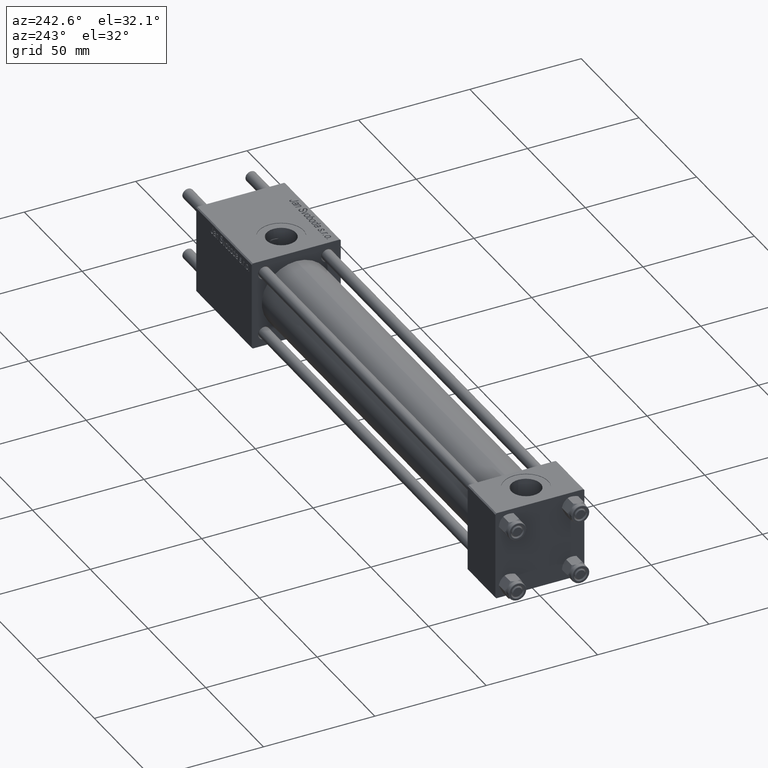
[diagram: clean part render]
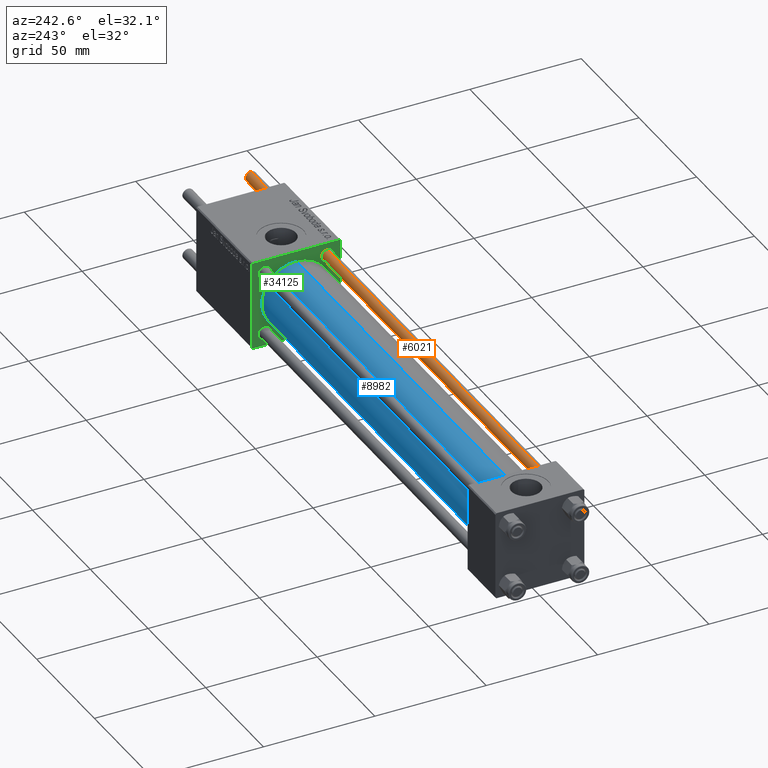
[diagram: same view with three faces highlighted in distinct colors, each labeled with its STEP entity id]
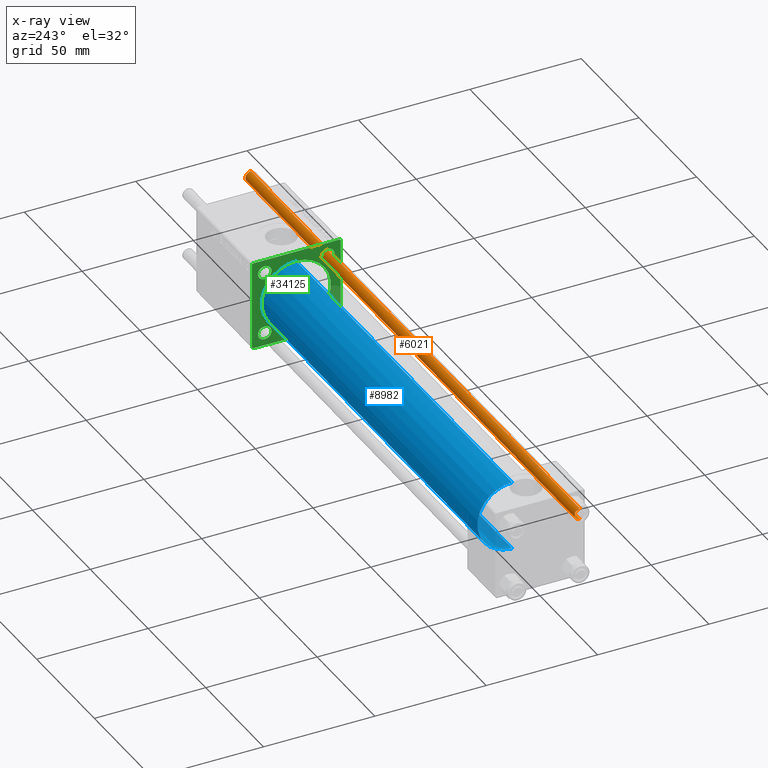
[diagram: x-ray of the same camera — body ghosted, the three highlighted faces saturated]
A machine part, auxiliary view with three faces highlighted in distinct colors.
The next image is the same camera in x-ray (body ghosted, the three faces saturated) — at least one of them is partly hidden behind the body in this view.
Their STEP definitions:

[orange] entity #6021 — the highlighted cylindrical surface (edge-blend (fillet) strip) has radius 2.5 mm, axis along (-1, 0, -0).
#3072 = VERTEX_POINT ( 'NONE', #22778 ) ;
#4381 = ORIENTED_EDGE ( 'NONE', *, *, #10890, .T. ) ;
#5336 = EDGE_LOOP ( 'NONE', ( #15496, #4381, #50190, #16356 ) ) ;
#6021 = ADVANCED_FACE ( 'NONE', ( #41979 ), #37671, .T. ) ;
#7095 = DIRECTION ( 'NONE',  ( 1.000000000000000000, 0.000000000000000000, 0.000000000000000000 ) ) ;
#7249 = AXIS2_PLACEMENT_3D ( 'NONE', #42380, #37202, #7095 ) ;
#9975 = VERTEX_POINT ( 'NONE', #27459 ) ;
#10890 = EDGE_CURVE ( 'NONE', #38760, #28191, #41105, .T. ) ;
#10991 = CARTESIAN_POINT ( 'NONE',  ( 2.500000000000000000, 3.061616997868383141E-16, 285.4999999999999432 ) ) ;
#12110 = CARTESIAN_POINT ( 'NONE',  ( 2.500000000000000000, 3.061616997868383141E-16, 286.0000000000000000 ) ) ;
#13340 = EDGE_CURVE ( 'NONE', #38760, #9975, #25854, .T. ) ;
#15496 = ORIENTED_EDGE ( 'NONE', *, *, #13340, .F. ) ;
#16356 = ORIENTED_EDGE ( 'NONE', *, *, #55794, .T. ) ;
#16907 = CARTESIAN_POINT ( 'NONE',  ( -2.500000000000000000, 0.000000000000000000, 286.0000000000000000 ) ) ;
#17466 = DIRECTION ( 'NONE',  ( -0.000000000000000000, -0.000000000000000000, -1.000000000000000000 ) ) ;
#20191 = CARTESIAN_POINT ( 'NONE',  ( 0.000000000000000000, 0.000000000000000000, 0.4999999999999449329 ) ) ;
#21545 = DIRECTION ( 'NONE',  ( -0.000000000000000000, -0.000000000000000000, -1.000000000000000000 ) ) ;
#21991 = VECTOR ( 'NONE', #21545, 1000.000000000000000 ) ;
#22778 = CARTESIAN_POINT ( 'NONE',  ( -2.500000000000000000, 0.000000000000000000, 0.4999999999999449329 ) ) ;
#25779 = LINE ( 'NONE', #16907, #44463 ) ;
#25854 = LINE ( 'NONE', #12110, #21991 ) ;
#27459 = CARTESIAN_POINT ( 'NONE',  ( 2.500000000000000000, 3.061616997868383141E-16, 0.4999999999999449329 ) ) ;
#28191 = VERTEX_POINT ( 'NONE', #51040 ) ;
#29631 = DIRECTION ( 'NONE',  ( -0.000000000000000000, -0.000000000000000000, -1.000000000000000000 ) ) ;
#37202 = DIRECTION ( 'NONE',  ( 0.000000000000000000, 0.000000000000000000, -1.000000000000000000 ) ) ;
#37671 = CYLINDRICAL_SURFACE ( 'NONE', #55639, 2.500000000000000000 ) ;
#37677 = DIRECTION ( 'NONE',  ( -0.000000000000000000, -0.000000000000000000, 1.000000000000000000 ) ) ;
#38760 = VERTEX_POINT ( 'NONE', #10991 ) ;
#40085 = AXIS2_PLACEMENT_3D ( 'NONE', #20191, #37677, #42560 ) ;
#41105 = CIRCLE ( 'NONE', #7249, 2.500000000000000000 ) ;
#41979 = FACE_OUTER_BOUND ( 'NONE', #5336, .T. ) ;
#42380 = CARTESIAN_POINT ( 'NONE',  ( 0.000000000000000000, 0.000000000000000000, 285.4999999999999432 ) ) ;
#42560 = DIRECTION ( 'NONE',  ( 1.000000000000000000, 0.000000000000000000, 0.000000000000000000 ) ) ;
#44463 = VECTOR ( 'NONE', #17466, 1000.000000000000000 ) ;
#49405 = EDGE_CURVE ( 'NONE', #28191, #3072, #25779, .T. ) ;
#50190 = ORIENTED_EDGE ( 'NONE', *, *, #49405, .T. ) ;
#51040 = CARTESIAN_POINT ( 'NONE',  ( -2.500000000000000000, 0.000000000000000000, 285.4999999999999432 ) ) ;
#51439 = CARTESIAN_POINT ( 'NONE',  ( 0.000000000000000000, 0.000000000000000000, 286.0000000000000000 ) ) ;
#52882 = CIRCLE ( 'NONE', #40085, 2.500000000000000000 ) ;
#53820 = DIRECTION ( 'NONE',  ( -1.000000000000000000, 0.000000000000000000, 0.000000000000000000 ) ) ;
#55639 = AXIS2_PLACEMENT_3D ( 'NONE', #51439, #29631, #53820 ) ;
#55794 = EDGE_CURVE ( 'NONE', #3072, #9975, #52882, .T. ) ;

[blue] entity #8982 — the highlighted cylindrical surface (partial cylindrical patch) has radius 15.5 mm, axis along (-1, -0, -0).
#2946 = VECTOR ( 'NONE', #49266, 1000.000000000000000 ) ;
#3330 = ORIENTED_EDGE ( 'NONE', *, *, #33456, .T. ) ;
#5715 = EDGE_CURVE ( 'NONE', #48052, #22414, #36388, .T. ) ;
#6720 = CARTESIAN_POINT ( 'NONE',  ( 211.0000000000000000, -2.602085213965210642E-15, 15.50000000000000000 ) ) ;
#8982 = ADVANCED_FACE ( 'NONE', ( #45680 ), #24166, .T. ) ;
#10419 = DIRECTION ( 'NONE',  ( -1.000000000000000000, -0.000000000000000000, -0.000000000000000000 ) ) ;
#11209 = DIRECTION ( 'NONE',  ( 0.000000000000000000, 0.000000000000000000, 1.000000000000000000 ) ) ;
#14284 = LINE ( 'NONE', #31759, #2946 ) ;
#15570 = CARTESIAN_POINT ( 'NONE',  ( 211.0000000000000000, -2.602085213965210642E-15, 0.000000000000000000 ) ) ;
#16452 = CARTESIAN_POINT ( 'NONE',  ( 23.99999999999999289, -7.038826752868131828E-16, -15.50000000000000000 ) ) ;
#16490 = ORIENTED_EDGE ( 'NONE', *, *, #17207, .T. ) ;
#17207 = EDGE_CURVE ( 'NONE', #39009, #44086, #51214, .T. ) ;
#20161 = VECTOR ( 'NONE', #24215, 1000.000000000000000 ) ;
#22414 = VERTEX_POINT ( 'NONE', #34363 ) ;
#24054 = DIRECTION ( 'NONE',  ( 0.000000000000000000, 0.000000000000000000, -1.000000000000000000 ) ) ;
#24166 = CYLINDRICAL_SURFACE ( 'NONE', #34674, 15.50000000000000000 ) ;
#24215 = DIRECTION ( 'NONE',  ( -1.000000000000000000, -0.000000000000000000, -0.000000000000000000 ) ) ;
#26813 = EDGE_CURVE ( 'NONE', #22414, #44086, #46009, .T. ) ;
#30472 = CARTESIAN_POINT ( 'NONE',  ( 23.99999999999999289, -2.602085213965210642E-15, 15.50000000000000000 ) ) ;
#31759 = CARTESIAN_POINT ( 'NONE',  ( 211.0000000000000000, -7.038826752868131828E-16, -15.50000000000000000 ) ) ;
#32735 = AXIS2_PLACEMENT_3D ( 'NONE', #36950, #45842, #24054 ) ;
#33051 = DIRECTION ( 'NONE',  ( 0.000000000000000000, 0.000000000000000000, 1.000000000000000000 ) ) ;
#33456 = EDGE_CURVE ( 'NONE', #48052, #39009, #14284, .T. ) ;
#33950 = CARTESIAN_POINT ( 'NONE',  ( 211.0000000000000000, -7.038826752868131828E-16, -15.50000000000000000 ) ) ;
#34363 = CARTESIAN_POINT ( 'NONE',  ( 211.0000000000000000, -2.602085213965210642E-15, 15.50000000000000000 ) ) ;
#34674 = AXIS2_PLACEMENT_3D ( 'NONE', #15570, #10419, #33051 ) ;
#35816 = EDGE_LOOP ( 'NONE', ( #41666, #3330, #16490, #37172 ) ) ;
#36388 = CIRCLE ( 'NONE', #32735, 15.50000000000000000 ) ;
#36950 = CARTESIAN_POINT ( 'NONE',  ( 211.0000000000000000, -2.602085213965210642E-15, 0.000000000000000000 ) ) ;
#37172 = ORIENTED_EDGE ( 'NONE', *, *, #26813, .F. ) ;
#37873 = DIRECTION ( 'NONE',  ( 1.000000000000000000, 0.000000000000000000, 0.000000000000000000 ) ) ;
#39009 = VERTEX_POINT ( 'NONE', #16452 ) ;
#41666 = ORIENTED_EDGE ( 'NONE', *, *, #5715, .F. ) ;
#44086 = VERTEX_POINT ( 'NONE', #30472 ) ;
#45680 = FACE_OUTER_BOUND ( 'NONE', #35816, .T. ) ;
#45717 = AXIS2_PLACEMENT_3D ( 'NONE', #50204, #37873, #11209 ) ;
#45842 = DIRECTION ( 'NONE',  ( 1.000000000000000000, 0.000000000000000000, 0.000000000000000000 ) ) ;
#46009 = LINE ( 'NONE', #6720, #20161 ) ;
#48052 = VERTEX_POINT ( 'NONE', #33950 ) ;
#49266 = DIRECTION ( 'NONE',  ( -1.000000000000000000, -0.000000000000000000, -0.000000000000000000 ) ) ;
#50204 = CARTESIAN_POINT ( 'NONE',  ( 23.99999999999999289, -2.602085213965210642E-15, 0.000000000000000000 ) ) ;
#51214 = CIRCLE ( 'NONE', #45717, 15.50000000000000000 ) ;

[green] entity #34125 — the highlighted planar face has unit normal (-1, 0, 0).
#673 = CIRCLE ( 'NONE', #34554, 15.50000000000000000 ) ;
#823 = CARTESIAN_POINT ( 'NONE',  ( 211.0000000000000000, -14.15000000000000036, -14.15000000000000036 ) ) ;
#1014 = CARTESIAN_POINT ( 'NONE',  ( 211.0000000000000000, -20.00000000000000355, 19.50000000000002487 ) ) ;
#1633 = ORIENTED_EDGE ( 'NONE', *, *, #25261, .T. ) ;
#2197 = DIRECTION ( 'NONE',  ( 0.000000000000000000, 0.000000000000000000, 1.000000000000000000 ) ) ;
#2783 = CARTESIAN_POINT ( 'NONE',  ( 211.0000000000000000, 14.15000000000000036, 14.15000000000000036 ) ) ;
#2962 = CIRCLE ( 'NONE', #19429, 3.000000000000004441 ) ;
#3166 = ORIENTED_EDGE ( 'NONE', *, *, #52706, .T. ) ;
#3206 = DIRECTION ( 'NONE',  ( 0.000000000000000000, 0.000000000000000000, -1.000000000000000000 ) ) ;
#3357 = DIRECTION ( 'NONE',  ( 1.000000000000000000, 0.000000000000000000, 0.000000000000000000 ) ) ;
#3526 = ORIENTED_EDGE ( 'NONE', *, *, #5715, .T. ) ;
#4502 = EDGE_CURVE ( 'NONE', #52667, #14457, #26282, .T. ) ;
#4556 = CARTESIAN_POINT ( 'NONE',  ( 211.0000000000000000, 14.15000000000000036, 17.15000000000000568 ) ) ;
#4564 = ORIENTED_EDGE ( 'NONE', *, *, #47309, .T. ) ;
#4659 = CARTESIAN_POINT ( 'NONE',  ( 211.0000000000000000, 14.15000000000000036, -14.15000000000000036 ) ) ;
#4885 = AXIS2_PLACEMENT_3D ( 'NONE', #11842, #39345, #43648 ) ;
#5340 = CARTESIAN_POINT ( 'NONE',  ( 211.0000000000000000, 19.99999999999999645, -20.00000000000000000 ) ) ;
#5460 = DIRECTION ( 'NONE',  ( -1.000000000000000000, 0.000000000000000000, -0.000000000000000000 ) ) ;
#5545 = EDGE_LOOP ( 'NONE', ( #3166, #28317, #18355, #45101, #40888, #55424, #43233, #54383 ) ) ;
#5662 = CIRCLE ( 'NONE', #45941, 3.000000000000004441 ) ;
#5715 = EDGE_CURVE ( 'NONE', #48052, #22414, #36388, .T. ) ;
#6022 = FACE_OUTER_BOUND ( 'NONE', #5545, .T. ) ;
#6049 = DIRECTION ( 'NONE',  ( -0.000000000000000000, -0.7071067811865474617, -0.7071067811865474617 ) ) ;
#6095 = CARTESIAN_POINT ( 'NONE',  ( 211.0000000000000000, -20.00000000000000000, -19.49999999999999645 ) ) ;
#6458 = EDGE_CURVE ( 'NONE', #25003, #43104, #38750, .T. ) ;
#6519 = DIRECTION ( 'NONE',  ( 0.000000000000000000, 8.673617379884036705E-17, -1.000000000000000000 ) ) ;
#7721 = CARTESIAN_POINT ( 'NONE',  ( 211.0000000000000000, 14.15000000000000036, 14.15000000000000036 ) ) ;
#7779 = EDGE_CURVE ( 'NONE', #28543, #27885, #15129, .T. ) ;
#8897 = EDGE_CURVE ( 'NONE', #21566, #25003, #9849, .T. ) ;
#9002 = VECTOR ( 'NONE', #27326, 1000.000000000000114 ) ;
#9386 = AXIS2_PLACEMENT_3D ( 'NONE', #32120, #5460, #49057 ) ;
#9714 = VERTEX_POINT ( 'NONE', #9928 ) ;
#9849 = LINE ( 'NONE', #27041, #9002 ) ;
#9928 = CARTESIAN_POINT ( 'NONE',  ( 211.0000000000000000, -14.15000000000000036, -17.14999999999997726 ) ) ;
#11427 = AXIS2_PLACEMENT_3D ( 'NONE', #4659, #43671, #26720 ) ;
#11740 = DIRECTION ( 'NONE',  ( 0.000000000000000000, 0.000000000000000000, 1.000000000000000000 ) ) ;
#11840 = VECTOR ( 'NONE', #6049, 1000.000000000000114 ) ;
#11842 = CARTESIAN_POINT ( 'NONE',  ( 211.0000000000000000, -14.15000000000000036, 14.15000000000000036 ) ) ;
#13365 = EDGE_LOOP ( 'NONE', ( #19633, #18680 ) ) ;
#14176 = CIRCLE ( 'NONE', #39807, 2.999999999999976463 ) ;
#14208 = CARTESIAN_POINT ( 'NONE',  ( 211.0000000000000000, -19.75000000000055067, -19.74999999999945288 ) ) ;
#14457 = VERTEX_POINT ( 'NONE', #4556 ) ;
#14641 = PLANE ( 'NONE',  #9386 ) ;
#14785 = ORIENTED_EDGE ( 'NONE', *, *, #41514, .T. ) ;
#14817 = DIRECTION ( 'NONE',  ( 1.000000000000000000, 0.000000000000000000, 0.000000000000000000 ) ) ;
#15129 = LINE ( 'NONE', #41506, #46546 ) ;
#16395 = DIRECTION ( 'NONE',  ( 1.000000000000000000, 0.000000000000000000, 0.000000000000000000 ) ) ;
#16404 = DIRECTION ( 'NONE',  ( 0.000000000000000000, -1.000000000000000000, -8.673617379884035472E-17 ) ) ;
#17079 = EDGE_CURVE ( 'NONE', #43104, #37433, #40490, .T. ) ;
#17375 = EDGE_LOOP ( 'NONE', ( #50814, #3526 ) ) ;
#17382 = DIRECTION ( 'NONE',  ( -0.000000000000000000, 0.7071067811865671127, 0.7071067811865279218 ) ) ;
#17717 = ORIENTED_EDGE ( 'NONE', *, *, #4502, .T. ) ;
#17901 = VECTOR ( 'NONE', #16404, 1000.000000000000000 ) ;
#17955 = EDGE_CURVE ( 'NONE', #9714, #31410, #19191, .T. ) ;
#18301 = DIRECTION ( 'NONE',  ( 1.000000000000000000, 0.000000000000000000, 0.000000000000000000 ) ) ;
#18355 = ORIENTED_EDGE ( 'NONE', *, *, #7779, .F. ) ;
#18680 = ORIENTED_EDGE ( 'NONE', *, *, #38139, .T. ) ;
#18791 = DIRECTION ( 'NONE',  ( 0.000000000000000000, -0.7071067811865279218, 0.7071067811865672237 ) ) ;
#19191 = CIRCLE ( 'NONE', #55850, 2.999999999999976463 ) ;
#19398 = CARTESIAN_POINT ( 'NONE',  ( 211.0000000000000000, -14.15000000000000036, -14.15000000000000036 ) ) ;
#19429 = AXIS2_PLACEMENT_3D ( 'NONE', #7721, #46427, #11740 ) ;
#19598 = CARTESIAN_POINT ( 'NONE',  ( 211.0000000000000000, 19.49999999999999645, 20.00000000000000000 ) ) ;
#19633 = ORIENTED_EDGE ( 'NONE', *, *, #32491, .T. ) ;
#20056 = CARTESIAN_POINT ( 'NONE',  ( 211.0000000000000000, 14.15000000000000036, -17.14999999999997726 ) ) ;
#20980 = CARTESIAN_POINT ( 'NONE',  ( 211.0000000000000000, 19.99999999999999645, 20.00000000000000000 ) ) ;
#21566 = VERTEX_POINT ( 'NONE', #19598 ) ;
#21622 = VECTOR ( 'NONE', #39778, 1000.000000000000000 ) ;
#21734 = EDGE_LOOP ( 'NONE', ( #47110, #38029 ) ) ;
#22284 = LINE ( 'NONE', #5340, #21622 ) ;
#22414 = VERTEX_POINT ( 'NONE', #34363 ) ;
#22678 = FACE_BOUND ( 'NONE', #21734, .T. ) ;
#22679 = CARTESIAN_POINT ( 'NONE',  ( 211.0000000000000000, 19.49999999999999645, -20.00000000000000000 ) ) ;
#23219 = VERTEX_POINT ( 'NONE', #46421 ) ;
#23647 = CARTESIAN_POINT ( 'NONE',  ( 211.0000000000000000, -19.50000000000002487, -20.00000000000000000 ) ) ;
#24054 = DIRECTION ( 'NONE',  ( 0.000000000000000000, 0.000000000000000000, -1.000000000000000000 ) ) ;
#25003 = VERTEX_POINT ( 'NONE', #54961 ) ;
#25133 = CARTESIAN_POINT ( 'NONE',  ( 211.0000000000000000, -14.15000000000000036, 17.15000000000000568 ) ) ;
#25145 = DIRECTION ( 'NONE',  ( 0.000000000000000000, 0.000000000000000000, 1.000000000000000000 ) ) ;
#25261 = EDGE_CURVE ( 'NONE', #14457, #52667, #2962, .T. ) ;
#26282 = CIRCLE ( 'NONE', #30855, 3.000000000000004441 ) ;
#26461 = EDGE_LOOP ( 'NONE', ( #1633, #17717 ) ) ;
#26615 = DIRECTION ( 'NONE',  ( 0.000000000000000000, 0.000000000000000000, 1.000000000000000000 ) ) ;
#26720 = DIRECTION ( 'NONE',  ( 0.000000000000000000, 0.000000000000000000, 1.000000000000000000 ) ) ;
#27041 = CARTESIAN_POINT ( 'NONE',  ( 211.0000000000000000, 19.74999999999999645, 19.74999999999999645 ) ) ;
#27326 = DIRECTION ( 'NONE',  ( 0.000000000000000000, 0.7071067811865474617, -0.7071067811865474617 ) ) ;
#27885 = VERTEX_POINT ( 'NONE', #6095 ) ;
#28317 = ORIENTED_EDGE ( 'NONE', *, *, #30425, .T. ) ;
#28543 = VERTEX_POINT ( 'NONE', #1014 ) ;
#28647 = DIRECTION ( 'NONE',  ( 1.000000000000000000, 0.000000000000000000, 0.000000000000000000 ) ) ;
#28810 = CIRCLE ( 'NONE', #11427, 2.999999999999976463 ) ;
#29119 = CARTESIAN_POINT ( 'NONE',  ( 211.0000000000000000, -14.15000000000000036, 11.14999999999999858 ) ) ;
#29608 = CIRCLE ( 'NONE', #4885, 3.000000000000004441 ) ;
#30425 = EDGE_CURVE ( 'NONE', #55740, #27885, #35996, .T. ) ;
#30682 = CARTESIAN_POINT ( 'NONE',  ( 211.0000000000000000, 19.99999999999999645, 20.00000000000000000 ) ) ;
#30855 = AXIS2_PLACEMENT_3D ( 'NONE', #2783, #3357, #25145 ) ;
#31084 = VERTEX_POINT ( 'NONE', #20056 ) ;
#31410 = VERTEX_POINT ( 'NONE', #36041 ) ;
#31482 = DIRECTION ( 'NONE',  ( 0.000000000000000000, 0.000000000000000000, 1.000000000000000000 ) ) ;
#32120 = CARTESIAN_POINT ( 'NONE',  ( 211.0000000000000000, 0.000000000000000000, 0.000000000000000000 ) ) ;
#32491 = EDGE_CURVE ( 'NONE', #53718, #53561, #5662, .T. ) ;
#32735 = AXIS2_PLACEMENT_3D ( 'NONE', #36950, #45842, #24054 ) ;
#33928 = CARTESIAN_POINT ( 'NONE',  ( 211.0000000000000000, 14.15000000000000036, -11.15000000000002522 ) ) ;
#33950 = CARTESIAN_POINT ( 'NONE',  ( 211.0000000000000000, -7.038826752868131828E-16, -15.50000000000000000 ) ) ;
#34125 = ADVANCED_FACE ( 'NONE', ( #45313, #36427, #53924, #22678, #45593, #6022 ), #14641, .T. ) ;
#34363 = CARTESIAN_POINT ( 'NONE',  ( 211.0000000000000000, -2.602085213965210642E-15, 15.50000000000000000 ) ) ;
#34554 = AXIS2_PLACEMENT_3D ( 'NONE', #55378, #16395, #3206 ) ;
#35417 = CARTESIAN_POINT ( 'NONE',  ( 211.0000000000000000, -19.74999999999945999, 19.75000000000055067 ) ) ;
#35790 = DIRECTION ( 'NONE',  ( 1.000000000000000000, 0.000000000000000000, 0.000000000000000000 ) ) ;
#35996 = LINE ( 'NONE', #14208, #39495 ) ;
#36041 = CARTESIAN_POINT ( 'NONE',  ( 211.0000000000000000, -14.15000000000000036, -11.15000000000002522 ) ) ;
#36219 = VECTOR ( 'NONE', #17382, 1000.000000000000000 ) ;
#36388 = CIRCLE ( 'NONE', #32735, 15.50000000000000000 ) ;
#36427 = FACE_BOUND ( 'NONE', #26461, .T. ) ;
#36950 = CARTESIAN_POINT ( 'NONE',  ( 211.0000000000000000, -2.602085213965210642E-15, 0.000000000000000000 ) ) ;
#37433 = VERTEX_POINT ( 'NONE', #22679 ) ;
#38029 = ORIENTED_EDGE ( 'NONE', *, *, #17955, .T. ) ;
#38139 = EDGE_CURVE ( 'NONE', #53561, #53718, #29608, .T. ) ;
#38750 = LINE ( 'NONE', #30682, #53835 ) ;
#38924 = VERTEX_POINT ( 'NONE', #33928 ) ;
#38953 = AXIS2_PLACEMENT_3D ( 'NONE', #19398, #14817, #2197 ) ;
#39345 = DIRECTION ( 'NONE',  ( 1.000000000000000000, 0.000000000000000000, 0.000000000000000000 ) ) ;
#39495 = VECTOR ( 'NONE', #18791, 1000.000000000000000 ) ;
#39597 = DIRECTION ( 'NONE',  ( 0.000000000000000000, 0.000000000000000000, -1.000000000000000000 ) ) ;
#39778 = DIRECTION ( 'NONE',  ( 0.000000000000000000, -1.000000000000000000, 0.000000000000000000 ) ) ;
#39807 = AXIS2_PLACEMENT_3D ( 'NONE', #40383, #18301, #26615 ) ;
#39923 = CARTESIAN_POINT ( 'NONE',  ( 211.0000000000000000, 19.74999999999999645, -19.74999999999999645 ) ) ;
#40383 = CARTESIAN_POINT ( 'NONE',  ( 211.0000000000000000, 14.15000000000000036, -14.15000000000000036 ) ) ;
#40490 = LINE ( 'NONE', #39923, #11840 ) ;
#40888 = ORIENTED_EDGE ( 'NONE', *, *, #44308, .F. ) ;
#41506 = CARTESIAN_POINT ( 'NONE',  ( 211.0000000000000000, -20.00000000000000355, 19.99999999999999645 ) ) ;
#41514 = EDGE_CURVE ( 'NONE', #31084, #38924, #14176, .T. ) ;
#43054 = LINE ( 'NONE', #20980, #17901 ) ;
#43104 = VERTEX_POINT ( 'NONE', #50710 ) ;
#43233 = ORIENTED_EDGE ( 'NONE', *, *, #6458, .T. ) ;
#43423 = EDGE_CURVE ( 'NONE', #31410, #9714, #52649, .T. ) ;
#43648 = DIRECTION ( 'NONE',  ( 0.000000000000000000, 0.000000000000000000, 1.000000000000000000 ) ) ;
#43671 = DIRECTION ( 'NONE',  ( 1.000000000000000000, 0.000000000000000000, 0.000000000000000000 ) ) ;
#44308 = EDGE_CURVE ( 'NONE', #21566, #23219, #43054, .T. ) ;
#45101 = ORIENTED_EDGE ( 'NONE', *, *, #49975, .T. ) ;
#45313 = FACE_BOUND ( 'NONE', #13365, .T. ) ;
#45593 = FACE_BOUND ( 'NONE', #17375, .T. ) ;
#45842 = DIRECTION ( 'NONE',  ( 1.000000000000000000, 0.000000000000000000, 0.000000000000000000 ) ) ;
#45941 = AXIS2_PLACEMENT_3D ( 'NONE', #54751, #28647, #54473 ) ;
#46421 = CARTESIAN_POINT ( 'NONE',  ( 211.0000000000000000, -19.50000000000000355, 19.99999999999999645 ) ) ;
#46427 = DIRECTION ( 'NONE',  ( 1.000000000000000000, 0.000000000000000000, 0.000000000000000000 ) ) ;
#46546 = VECTOR ( 'NONE', #6519, 1000.000000000000000 ) ;
#47110 = ORIENTED_EDGE ( 'NONE', *, *, #43423, .T. ) ;
#47309 = EDGE_CURVE ( 'NONE', #38924, #31084, #28810, .T. ) ;
#48052 = VERTEX_POINT ( 'NONE', #33950 ) ;
#49057 = DIRECTION ( 'NONE',  ( -0.000000000000000000, 0.000000000000000000, 1.000000000000000000 ) ) ;
#49975 = EDGE_CURVE ( 'NONE', #28543, #23219, #56655, .T. ) ;
#50710 = CARTESIAN_POINT ( 'NONE',  ( 211.0000000000000000, 19.99999999999999645, -19.50000000000000000 ) ) ;
#50814 = ORIENTED_EDGE ( 'NONE', *, *, #54277, .T. ) ;
#51240 = EDGE_LOOP ( 'NONE', ( #4564, #14785 ) ) ;
#52396 = CARTESIAN_POINT ( 'NONE',  ( 211.0000000000000000, 14.15000000000000036, 11.14999999999999858 ) ) ;
#52649 = CIRCLE ( 'NONE', #38953, 2.999999999999976463 ) ;
#52667 = VERTEX_POINT ( 'NONE', #52396 ) ;
#52706 = EDGE_CURVE ( 'NONE', #37433, #55740, #22284, .T. ) ;
#53561 = VERTEX_POINT ( 'NONE', #29119 ) ;
#53718 = VERTEX_POINT ( 'NONE', #25133 ) ;
#53835 = VECTOR ( 'NONE', #39597, 1000.000000000000000 ) ;
#53924 = FACE_BOUND ( 'NONE', #51240, .T. ) ;
#54277 = EDGE_CURVE ( 'NONE', #22414, #48052, #673, .T. ) ;
#54383 = ORIENTED_EDGE ( 'NONE', *, *, #17079, .T. ) ;
#54473 = DIRECTION ( 'NONE',  ( 0.000000000000000000, 0.000000000000000000, 1.000000000000000000 ) ) ;
#54751 = CARTESIAN_POINT ( 'NONE',  ( 211.0000000000000000, -14.15000000000000036, 14.15000000000000036 ) ) ;
#54961 = CARTESIAN_POINT ( 'NONE',  ( 211.0000000000000000, 19.99999999999999645, 19.50000000000000000 ) ) ;
#55378 = CARTESIAN_POINT ( 'NONE',  ( 211.0000000000000000, -2.602085213965210642E-15, 0.000000000000000000 ) ) ;
#55424 = ORIENTED_EDGE ( 'NONE', *, *, #8897, .T. ) ;
#55740 = VERTEX_POINT ( 'NONE', #23647 ) ;
#55850 = AXIS2_PLACEMENT_3D ( 'NONE', #823, #35790, #31482 ) ;
#56655 = LINE ( 'NONE', #35417, #36219 ) ;